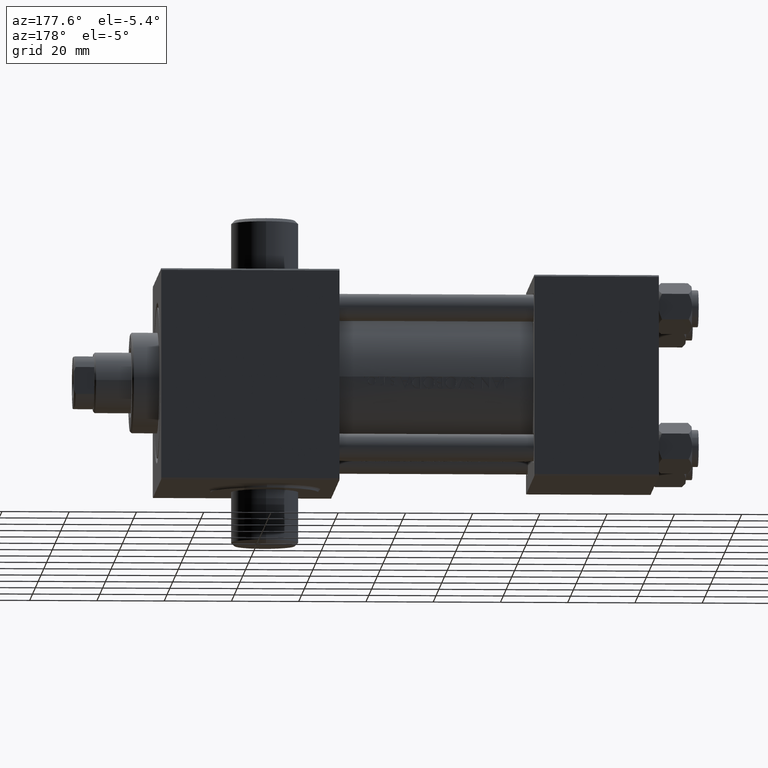
[diagram: clean part render]
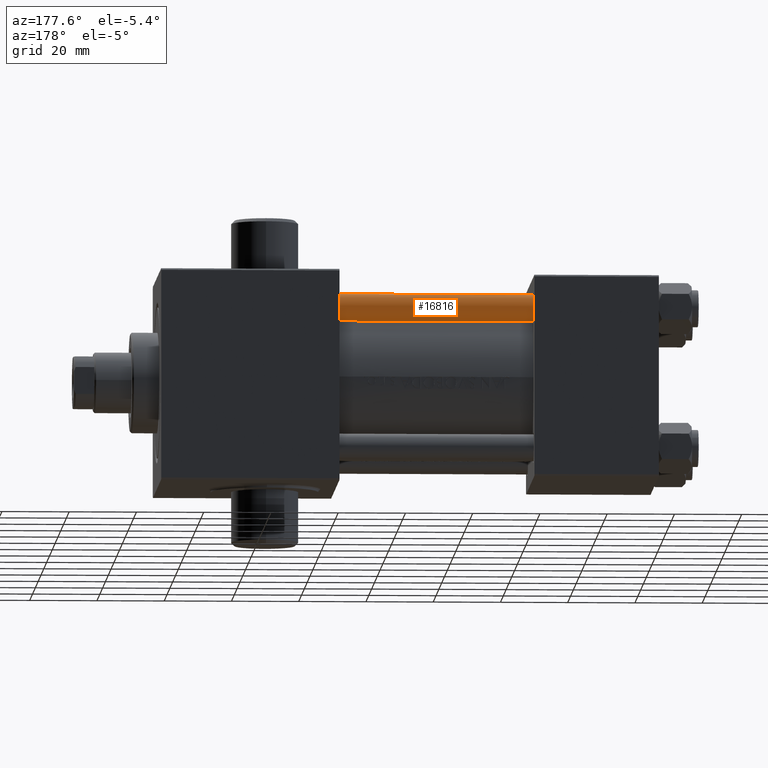
[diagram: same view with one face highlighted and labeled with its STEP entity id]
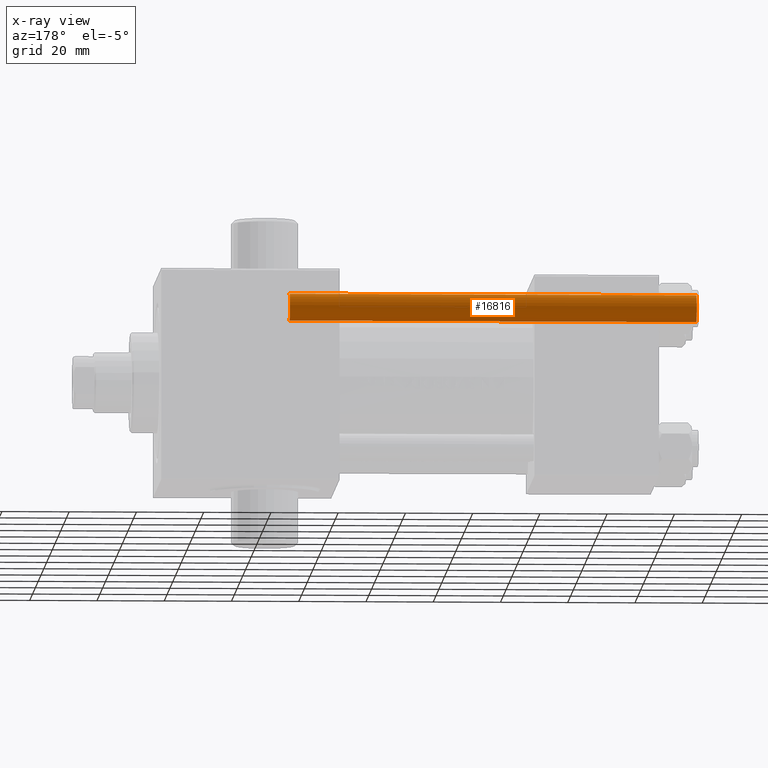
[diagram: x-ray of the same camera — body ghosted, the highlighted face saturated]
A machine part, auxiliary view. The second image highlights one B-rep face of the part: STEP entity #16816.
The next image is the same camera in x-ray: the body ghosted, the highlighted face saturated — about 0% of this face is hidden behind the body in this view.
In plain terms, the highlighted cylindrical surface (edge-blend (fillet) strip) has radius 4 mm, axis along (1, -0, 0).
Its self-contained STEP definition (entity closure, byte-faithful):
#279 = CIRCLE ( 'NONE', #41436, 4.000000000000000000 ) ;
#1228 = AXIS2_PLACEMENT_3D ( 'NONE', #40256, #8161, #12130 ) ;
#2932 = VECTOR ( 'NONE', #45988, 1000.000000000000000 ) ;
#3905 = DIRECTION ( 'NONE',  ( -0.000000000000000000, -0.000000000000000000, -1.000000000000000000 ) ) ;
#7673 = EDGE_CURVE ( 'NONE', #41065, #12744, #39518, .T. ) ;
#8161 = DIRECTION ( 'NONE',  ( 0.000000000000000000, 0.000000000000000000, -1.000000000000000000 ) ) ;
#8221 = FACE_OUTER_BOUND ( 'NONE', #33818, .T. ) ;
#9500 = ORIENTED_EDGE ( 'NONE', *, *, #33481, .F. ) ;
#9839 = EDGE_CURVE ( 'NONE', #12744, #32780, #279, .T. ) ;
#12130 = DIRECTION ( 'NONE',  ( 1.000000000000000000, 0.000000000000000000, 0.000000000000000000 ) ) ;
#12744 = VERTEX_POINT ( 'NONE', #13154 ) ;
#13154 = CARTESIAN_POINT ( 'NONE',  ( 4.000000000000000000, 4.898587196589411843E-16, 0.5000000000000559552 ) ) ;
#14423 = VECTOR ( 'NONE', #3905, 1000.000000000000000 ) ;
#14781 = ORIENTED_EDGE ( 'NONE', *, *, #9839, .T. ) ;
#15935 = CARTESIAN_POINT ( 'NONE',  ( 0.000000000000000000, 0.000000000000000000, 122.0000000000000000 ) ) ;
#16816 = ADVANCED_FACE ( 'NONE', ( #8221 ), #22503, .T. ) ;
#17491 = ORIENTED_EDGE ( 'NONE', *, *, #7673, .T. ) ;
#18118 = CARTESIAN_POINT ( 'NONE',  ( -4.000000000000000000, 0.000000000000000000, 122.0000000000000000 ) ) ;
#18566 = ORIENTED_EDGE ( 'NONE', *, *, #19145, .T. ) ;
#19145 = EDGE_CURVE ( 'NONE', #26445, #41065, #39383, .T. ) ;
#19445 = DIRECTION ( 'NONE',  ( -0.000000000000000000, -0.000000000000000000, -1.000000000000000000 ) ) ;
#22503 = CYLINDRICAL_SURFACE ( 'NONE', #43147, 4.000000000000000000 ) ;
#22547 = CARTESIAN_POINT ( 'NONE',  ( -4.000000000000000000, 0.000000000000000000, 0.5000000000000559552 ) ) ;
#23580 = DIRECTION ( 'NONE',  ( -0.000000000000000000, -0.000000000000000000, 1.000000000000000000 ) ) ;
#24492 = CARTESIAN_POINT ( 'NONE',  ( 4.000000000000000000, 4.898587196589411843E-16, 121.5000000000000426 ) ) ;
#25137 = LINE ( 'NONE', #18118, #2932 ) ;
#25451 = CARTESIAN_POINT ( 'NONE',  ( 4.000000000000000000, 4.898587196589411843E-16, 122.0000000000000000 ) ) ;
#26445 = VERTEX_POINT ( 'NONE', #29590 ) ;
#29590 = CARTESIAN_POINT ( 'NONE',  ( -4.000000000000000000, 0.000000000000000000, 121.5000000000000426 ) ) ;
#32780 = VERTEX_POINT ( 'NONE', #22547 ) ;
#33481 = EDGE_CURVE ( 'NONE', #26445, #32780, #25137, .T. ) ;
#33818 = EDGE_LOOP ( 'NONE', ( #18566, #17491, #14781, #9500 ) ) ;
#36791 = DIRECTION ( 'NONE',  ( -1.000000000000000000, 0.000000000000000000, 0.000000000000000000 ) ) ;
#39383 = CIRCLE ( 'NONE', #1228, 4.000000000000000000 ) ;
#39518 = LINE ( 'NONE', #25451, #14423 ) ;
#40256 = CARTESIAN_POINT ( 'NONE',  ( 0.000000000000000000, 0.000000000000000000, 121.5000000000000426 ) ) ;
#41065 = VERTEX_POINT ( 'NONE', #24492 ) ;
#41436 = AXIS2_PLACEMENT_3D ( 'NONE', #45602, #23580, #41636 ) ;
#41636 = DIRECTION ( 'NONE',  ( 1.000000000000000000, 0.000000000000000000, 0.000000000000000000 ) ) ;
#43147 = AXIS2_PLACEMENT_3D ( 'NONE', #15935, #19445, #36791 ) ;
#45602 = CARTESIAN_POINT ( 'NONE',  ( 0.000000000000000000, 0.000000000000000000, 0.5000000000000559552 ) ) ;
#45988 = DIRECTION ( 'NONE',  ( -0.000000000000000000, -0.000000000000000000, -1.000000000000000000 ) ) ;